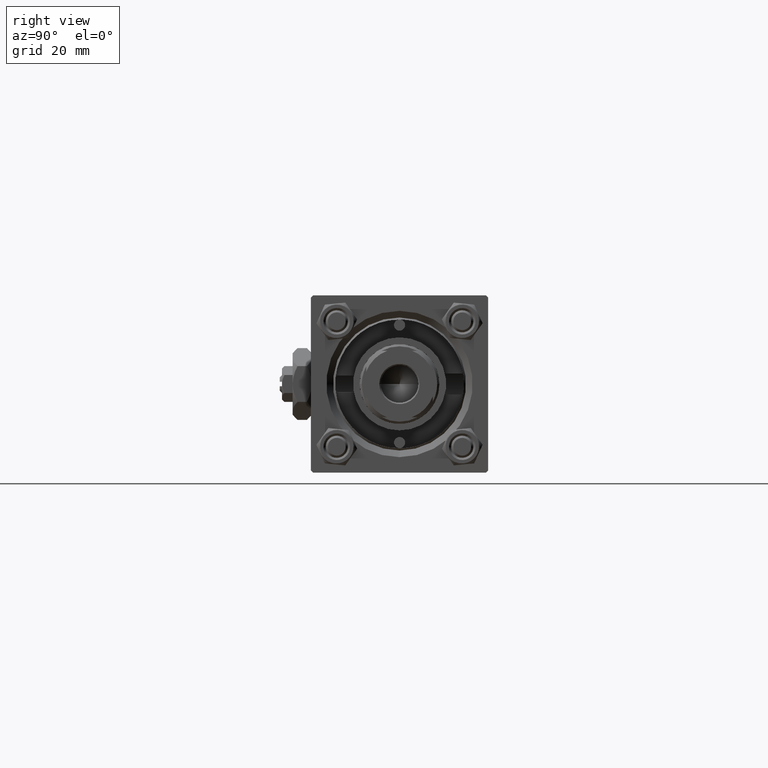
[diagram: clean part render]
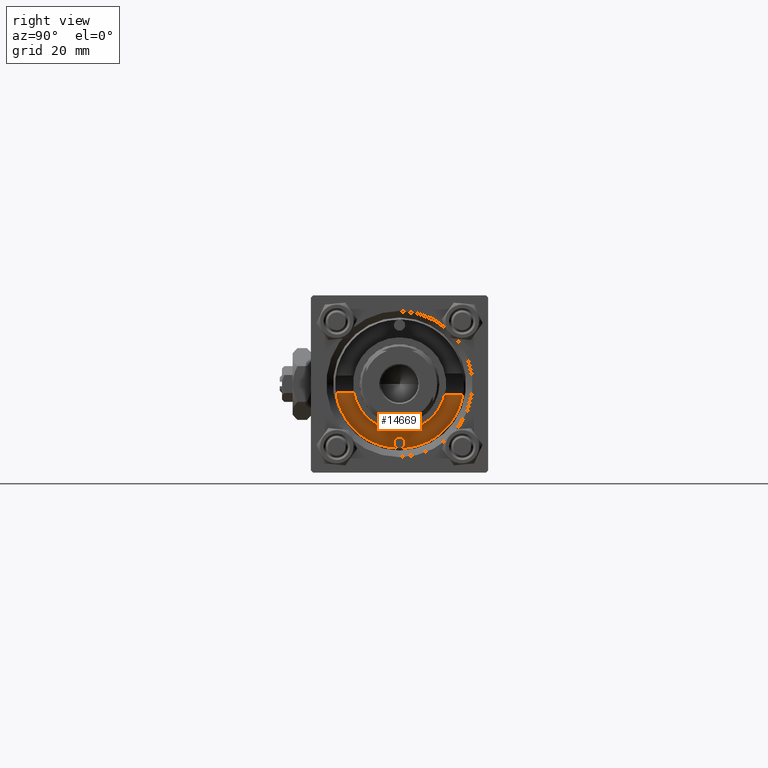
[diagram: same view with one face highlighted and labeled with its STEP entity id]
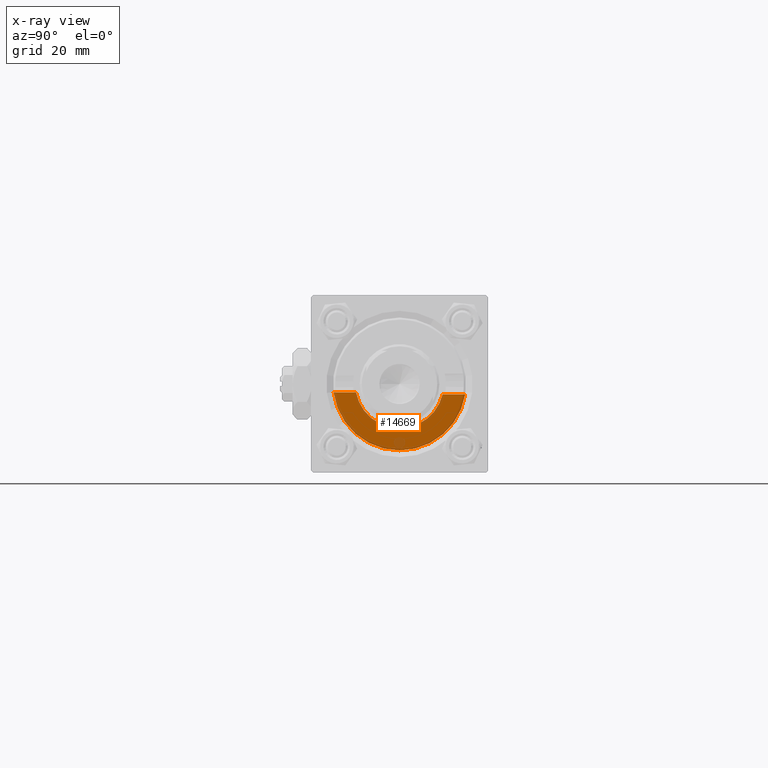
[diagram: x-ray of the same camera — body ghosted, the highlighted face saturated]
A machine part, right view. The second image highlights one B-rep face of the part: STEP entity #14669.
The next image is the same camera in x-ray: the body ghosted, the highlighted face saturated — about 21% of this face is hidden behind the body in this view.
In plain terms, the highlighted planar face has unit normal (1, 0, 0).
Its self-contained STEP definition (entity closure, byte-faithful):
#540 = PLANE ( 'NONE',  #46266 ) ;
#1037 = DIRECTION ( 'NONE',  ( 0.000000000000000000, 0.000000000000000000, -1.000000000000000000 ) ) ;
#1806 = CARTESIAN_POINT ( 'NONE',  ( 90.30000000000001137, 0.000000000000000000, 0.000000000000000000 ) ) ;
#3399 = DIRECTION ( 'NONE',  ( 0.000000000000000000, 0.000000000000000000, -1.000000000000000000 ) ) ;
#3753 = ORIENTED_EDGE ( 'NONE', *, *, #39270, .T. ) ;
#4105 = AXIS2_PLACEMENT_3D ( 'NONE', #37758, #25174, #33062 ) ;
#4476 = FACE_OUTER_BOUND ( 'NONE', #15526, .T. ) ;
#5305 = EDGE_CURVE ( 'NONE', #33540, #42382, #7788, .T. ) ;
#5492 = DIRECTION ( 'NONE',  ( 1.000000000000000000, 0.000000000000000000, 0.000000000000000000 ) ) ;
#5765 = CIRCLE ( 'NONE', #4105, 9.999999999999998224 ) ;
#6962 = EDGE_CURVE ( 'NONE', #9887, #38307, #31905, .T. ) ;
#7325 = DIRECTION ( 'NONE',  ( 1.000000000000000000, 0.000000000000000000, 0.000000000000000000 ) ) ;
#7788 = LINE ( 'NONE', #43979, #51091 ) ;
#8043 = DIRECTION ( 'NONE',  ( 0.000000000000000000, 1.000000000000000000, 8.673617379884037937E-17 ) ) ;
#9887 = VERTEX_POINT ( 'NONE', #14792 ) ;
#10419 = CIRCLE ( 'NONE', #24659, 15.00000000000000000 ) ;
#10993 = CARTESIAN_POINT ( 'NONE',  ( 90.30000000000001137, 0.000000000000000000, 0.000000000000000000 ) ) ;
#14669 = ADVANCED_FACE ( 'NONE', ( #4476 ), #540, .T. ) ;
#14792 = CARTESIAN_POINT ( 'NONE',  ( 90.30000000000001137, 0.000000000000000000, -9.999999999999998224 ) ) ;
#15526 = EDGE_LOOP ( 'NONE', ( #49228, #3753, #15955, #35437, #32450, #29543 ) ) ;
#15955 = ORIENTED_EDGE ( 'NONE', *, *, #20157, .T. ) ;
#18613 = DIRECTION ( 'NONE',  ( 0.000000000000000000, 0.000000000000000000, -1.000000000000000000 ) ) ;
#20157 = EDGE_CURVE ( 'NONE', #45175, #31586, #45578, .T. ) ;
#21806 = DIRECTION ( 'NONE',  ( -0.000000000000000000, 1.000000000000000000, -0.000000000000000000 ) ) ;
#22973 = AXIS2_PLACEMENT_3D ( 'NONE', #40555, #36616, #44743 ) ;
#24659 = AXIS2_PLACEMENT_3D ( 'NONE', #26990, #46685, #18613 ) ;
#25174 = DIRECTION ( 'NONE',  ( 1.000000000000000000, 0.000000000000000000, 0.000000000000000000 ) ) ;
#25907 = CARTESIAN_POINT ( 'NONE',  ( 90.30000000000001137, -9.818024241159720944, -1.899052395275081295 ) ) ;
#26990 = CARTESIAN_POINT ( 'NONE',  ( 90.30000000000001137, 0.000000000000000000, 0.000000000000000000 ) ) ;
#29410 = LINE ( 'NONE', #45676, #44236 ) ;
#29543 = ORIENTED_EDGE ( 'NONE', *, *, #50519, .F. ) ;
#31586 = VERTEX_POINT ( 'NONE', #40025 ) ;
#31905 = CIRCLE ( 'NONE', #50347, 9.999999999999998224 ) ;
#32450 = ORIENTED_EDGE ( 'NONE', *, *, #6962, .F. ) ;
#33062 = DIRECTION ( 'NONE',  ( 0.000000000000000000, 0.000000000000000000, -1.000000000000000000 ) ) ;
#33540 = VERTEX_POINT ( 'NONE', #44108 ) ;
#35437 = ORIENTED_EDGE ( 'NONE', *, *, #48363, .F. ) ;
#36616 = DIRECTION ( 'NONE',  ( 1.000000000000000000, 0.000000000000000000, 0.000000000000000000 ) ) ;
#37432 = CARTESIAN_POINT ( 'NONE',  ( 90.30000000000001137, 0.000000000000000000, -15.00000000000000000 ) ) ;
#37758 = CARTESIAN_POINT ( 'NONE',  ( 90.30000000000001137, 0.000000000000000000, 0.000000000000000000 ) ) ;
#38307 = VERTEX_POINT ( 'NONE', #49109 ) ;
#39270 = EDGE_CURVE ( 'NONE', #33540, #45175, #10419, .T. ) ;
#40025 = CARTESIAN_POINT ( 'NONE',  ( 90.30000000000001137, 14.81226518801226000, -2.365755693219425027 ) ) ;
#40555 = CARTESIAN_POINT ( 'NONE',  ( 90.30000000000001137, 0.000000000000000000, 0.000000000000000000 ) ) ;
#42382 = VERTEX_POINT ( 'NONE', #25907 ) ;
#43979 = CARTESIAN_POINT ( 'NONE',  ( 90.30000000000001137, 20.00100000000008293, -1.899052395275078631 ) ) ;
#44108 = CARTESIAN_POINT ( 'NONE',  ( 90.30000000000001137, -14.87930105885353349, -1.899052395275081073 ) ) ;
#44236 = VECTOR ( 'NONE', #21806, 1000.000000000000000 ) ;
#44743 = DIRECTION ( 'NONE',  ( 0.000000000000000000, 0.000000000000000000, -1.000000000000000000 ) ) ;
#45175 = VERTEX_POINT ( 'NONE', #37432 ) ;
#45578 = CIRCLE ( 'NONE', #22973, 15.00000000000000000 ) ;
#45676 = CARTESIAN_POINT ( 'NONE',  ( 90.30000000000001137, 2.199999999999997069, -2.365755693219425027 ) ) ;
#46266 = AXIS2_PLACEMENT_3D ( 'NONE', #1806, #5492, #1037 ) ;
#46685 = DIRECTION ( 'NONE',  ( 1.000000000000000000, 0.000000000000000000, 0.000000000000000000 ) ) ;
#48363 = EDGE_CURVE ( 'NONE', #38307, #31586, #29410, .T. ) ;
#49109 = CARTESIAN_POINT ( 'NONE',  ( 90.30000000000001137, 9.716130917191257765, -2.365755693219425027 ) ) ;
#49228 = ORIENTED_EDGE ( 'NONE', *, *, #5305, .F. ) ;
#50347 = AXIS2_PLACEMENT_3D ( 'NONE', #10993, #7325, #3399 ) ;
#50519 = EDGE_CURVE ( 'NONE', #42382, #9887, #5765, .T. ) ;
#51091 = VECTOR ( 'NONE', #8043, 1000.000000000000000 ) ;